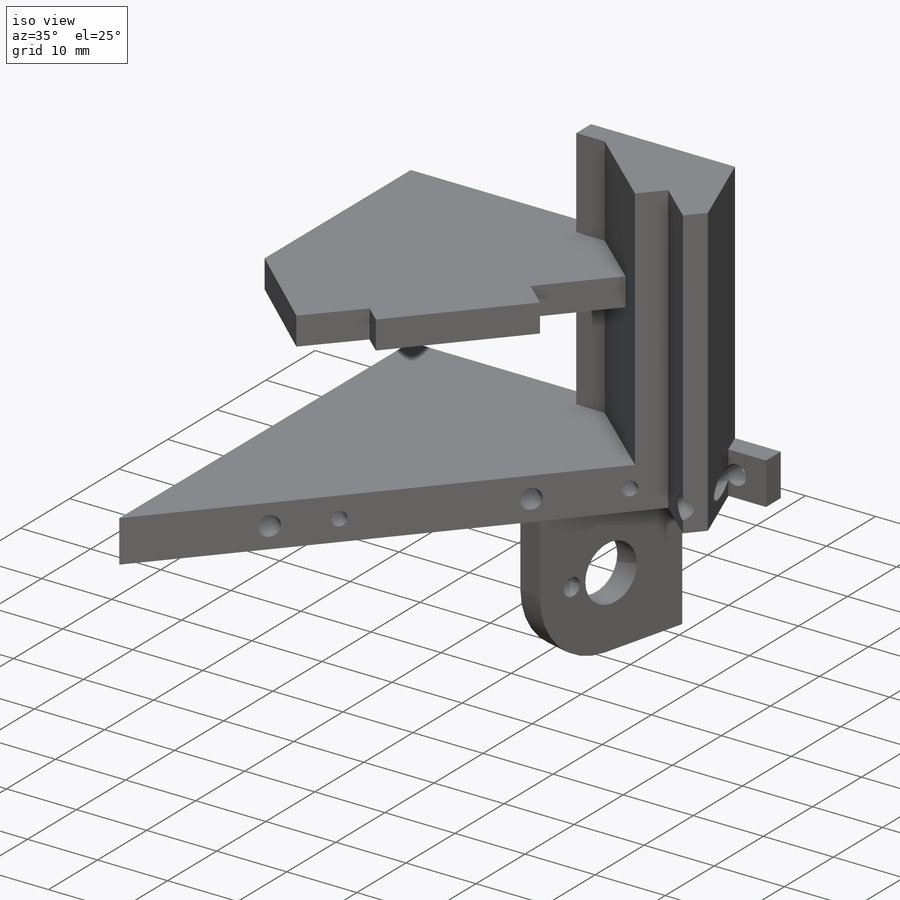
[diagram: iso view]
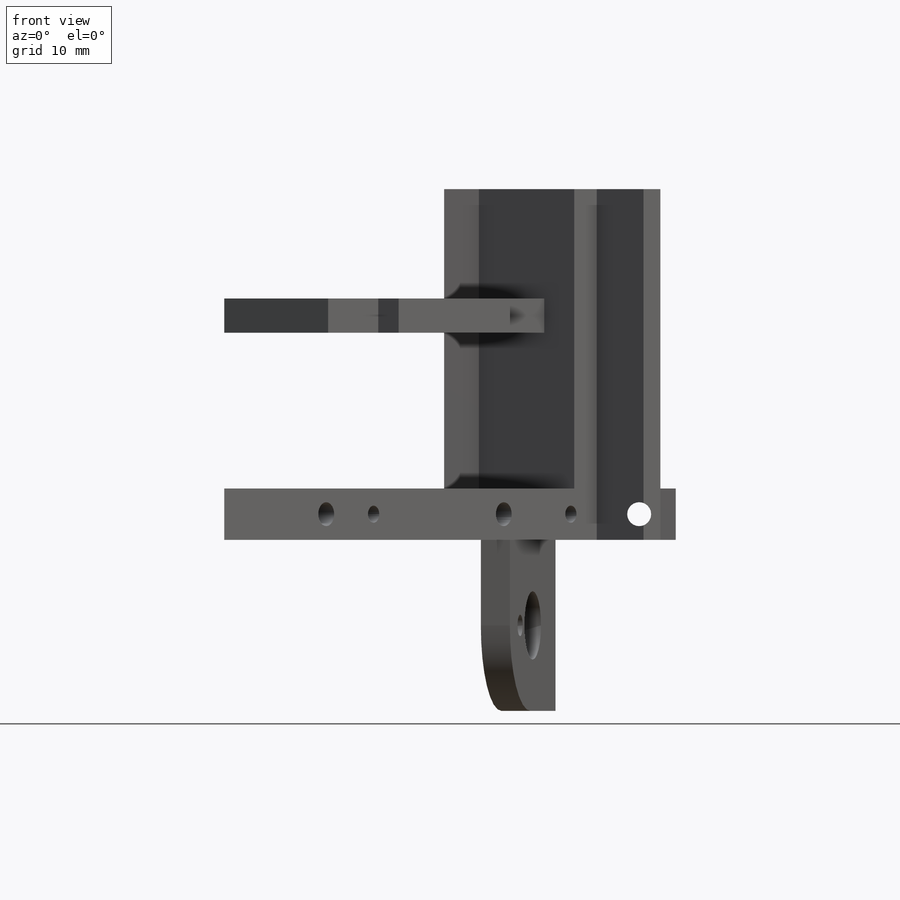
[diagram: front view]
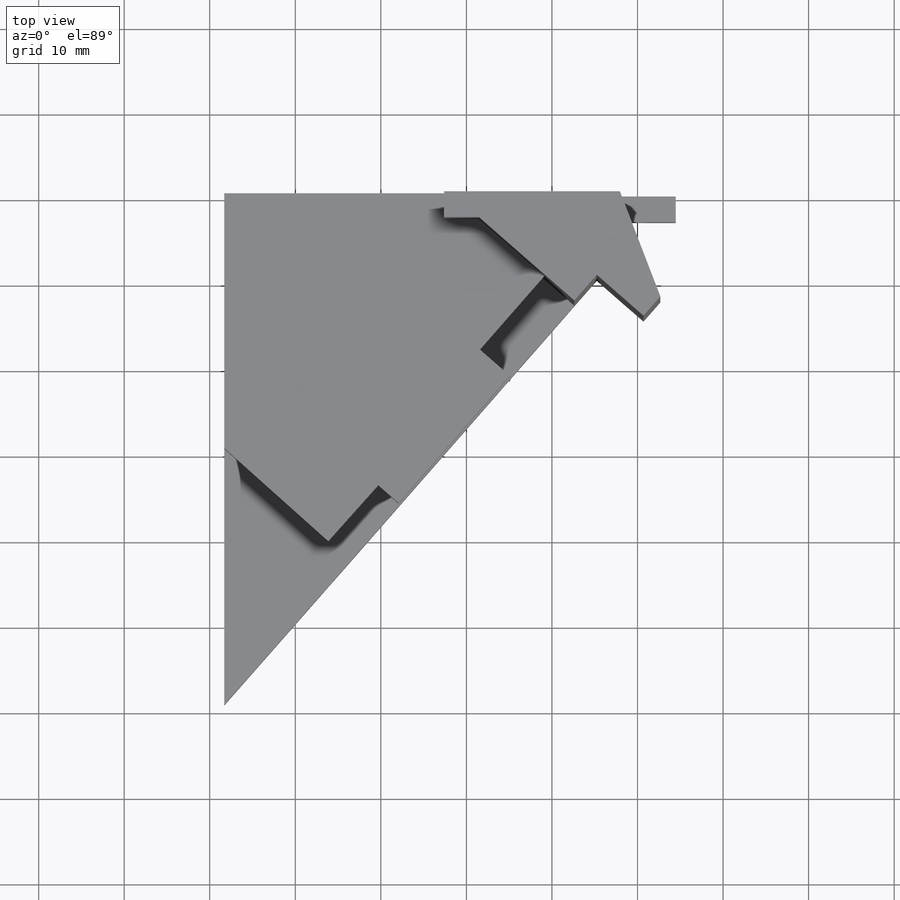
[diagram: top view]
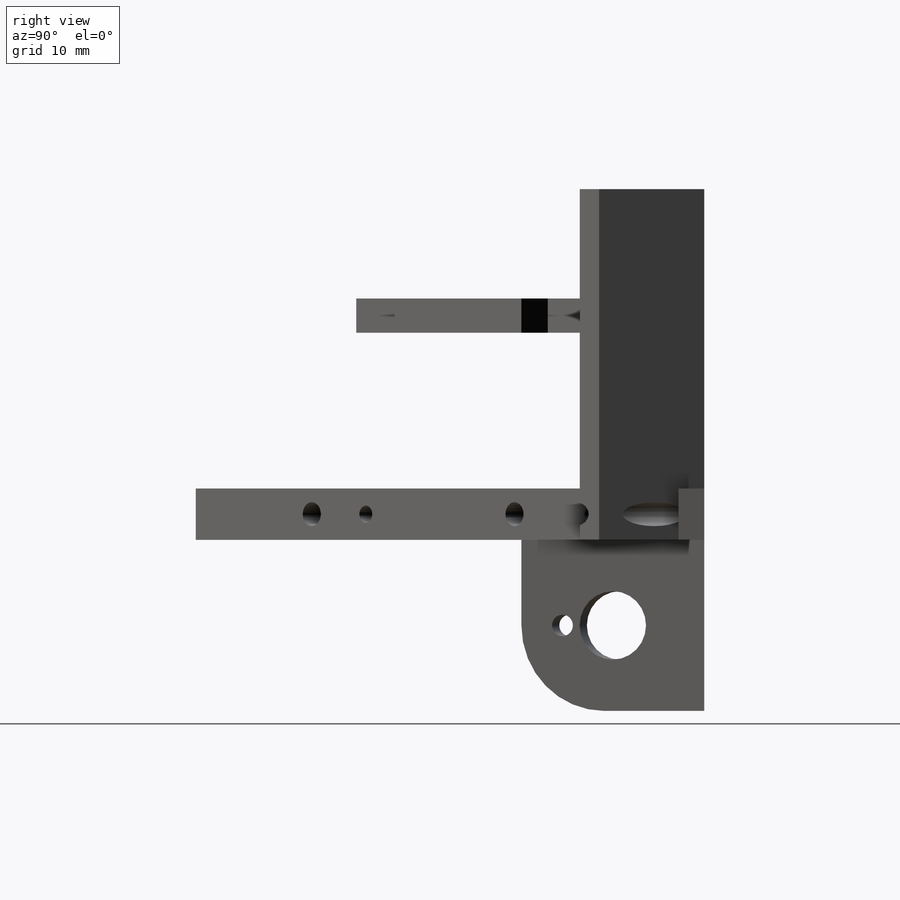
[diagram: right view]
SOLIDWORKS PART (.sldprt)
format: sldprt  version: not decoded by parser v0  size: 389,632 bytes
history: native  units: mm
features: sketch x13, extrude x6, cut_extrude x6, plane x4, material x1, fillet x1 (+10 scaffold rows collapsed)
feature tree (41):
  scaffold x10  (default folders/planes/origin — collapsed)
  material  "Matériau <non spécifié>"
  plane  "Plan de face"
  plane  "Plan de dessus"
  plane  "Plan de droite"
  sketch  "Esquisse2"  dims[D1=30.0mm D2=65.0mm]
  sketch  "Esquisse4"  dims[D1=6.0mm]
  extrude  "Boss.-Extru.1"  Depth=3mm
  sketch  "Esquisse6"  dims[c1.D1=~12.350999mm c2.D1=45.0deg c3.D1=3.0mm]
  extrude  "Boss.-Extru.2"  Depth=41mm
  sketch  "Esquisse9"
  cut_extrude  "Enlèv. mat.-Extru.1"  Depth=35mm
  plane  "Plan1"  Offset=26.644687mm
  sketch  "Esquisse10"
  extrude  "Boss.-Extru.3"  Depth=4mm
  sketch  "Esquisse11"  dims[D1=16.5mm D2=48.0mm]
  cut_extrude  "Enlèv. mat.-Extru.2"  Depth=43mm
  sketch  "Esquisse13"
  extrude  "Boss.-Extru.4"  Depth=41mm
  sketch  "Esquisse15"  dims[c1.D1=35.0mm c1.D2=17.5mm c2.D1=~7.798375mm c2.D3=~25.298375mm c3.D1=4.6mm]
  cut_extrude  "Enlèv. mat.-Extru.4"  Depth=30mm
  sketch  "Esquisse16"  dims[D1=3.5mm]
  extrude  "Boss.-Extru.5"  Depth=20mm
  sketch  "Esquisse18"  dims[D1=3.45mm]
  cut_extrude  "Enlèv. mat.-Extru.5"  Depth=12mm
  sketch  "Esquisse12"  dims[c1.D1=1.7mm c2.D1=35.0mm c2.D2=47.0mm c2.D3=20.3mm c2.D4=15.0mm c2.D5=19.1mm c2.D6=10.8mm c2.D7=14.2mm]
  cut_extrude  "Enlèv. mat.-Extru.6"  Depth=18mm
  sketch  "Esquisse19"
  cut_extrude  "Enlèv. mat.-Extru.7"  Depth=18mm
  fillet  "Congé1"  Radius=10mm
  sketch  "Esquisse20"
  extrude  "Boss.-Extru.7"  Depth=36mm
decode coverage: 21 of 26 modeling features carry decoded parameters
note: ~ marks probable driven/reference dimensions
note: suppression state not decoded; provenance and decode notes live in map.json
